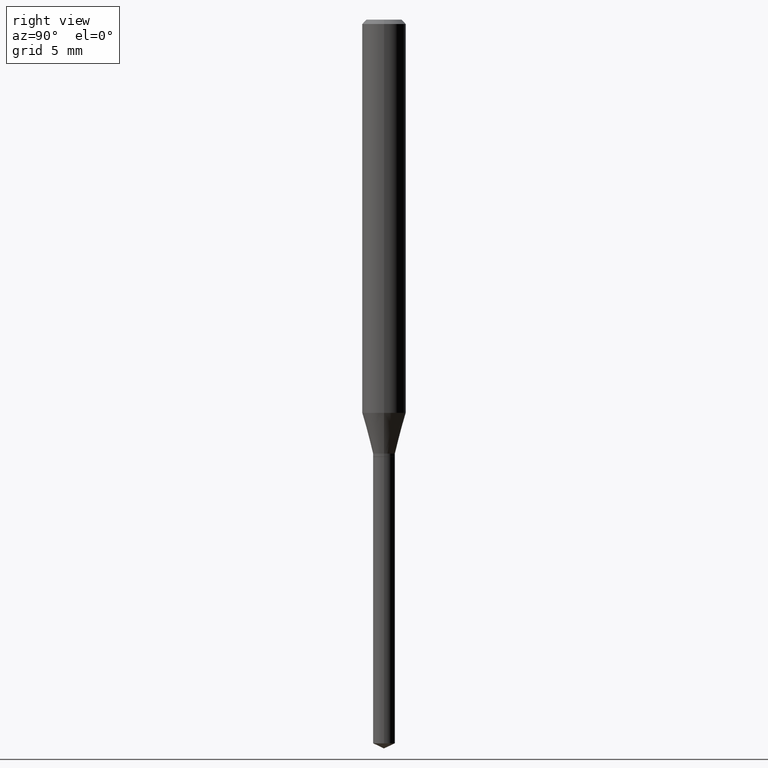
[diagram: clean part render]
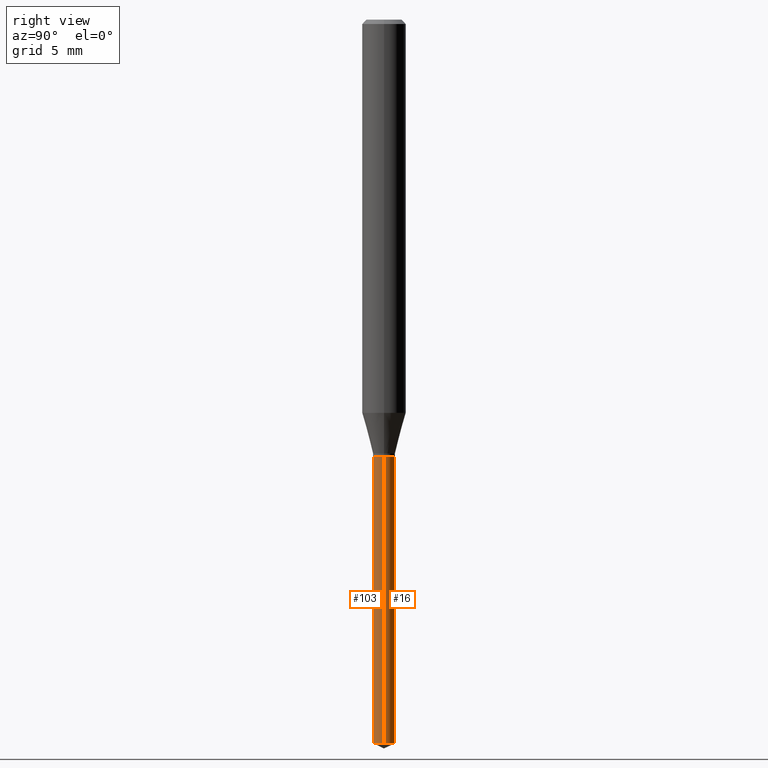
[diagram: same view with one multi-face feature highlighted, each face labeled with its STEP entity id]
A machine part, right view. The highlighted faces form ONE feature: a constant-radius fillet chain: 2 tangent blend faces with common blend radius 0.7506 mm. The faces share edges in the B-rep.
Their STEP definitions:
[1] entity #16 (Cylinder):
#5 = EDGE_CURVE ( 'NONE', #267, #316, #457, .T. ) ;
#10 = AXIS2_PLACEMENT_3D ( 'NONE', #373, #274, #487 ) ;
#16 = ADVANCED_FACE ( 'NONE', ( #430 ), #82, .T. ) ;
#18 = DIRECTION ( 'NONE',  ( -2.445468806185136597E-29, 3.491481338843145583E-15, 1.000000000000000000 ) ) ;
#40 = CARTESIAN_POINT ( 'NONE',  ( 0.02954999999999999294, -7.031217075059099515E-15, -1.954720608701519868 ) ) ;
#46 = DIRECTION ( 'NONE',  ( -2.445468806185136597E-29, 3.491481338843145583E-15, 1.000000000000000000 ) ) ;
#54 = ORIENTED_EDGE ( 'NONE', *, *, #445, .T. ) ;
#67 = DIRECTION ( 'NONE',  ( -2.445468806185136877E-29, 3.491481338843145188E-15, 1.000000000000000000 ) ) ;
#82 = CYLINDRICAL_SURFACE ( 'NONE', #417, 0.02954999999999999988 ) ;
#85 = CARTESIAN_POINT ( 'NONE',  ( -0.02954999999999999294, -6.614905149516361336E-15, -1.954720608701519868 ) ) ;
#97 = EDGE_LOOP ( 'NONE', ( #54, #100, #474, #293 ) ) ;
#100 = ORIENTED_EDGE ( 'NONE', *, *, #182, .T. ) ;
#106 = CARTESIAN_POINT ( 'NONE',  ( -0.02954999999999999988, -3.913823230890528878E-15, -1.181099999999999817 ) ) ;
#153 = AXIS2_PLACEMENT_3D ( 'NONE', #369, #18, #175 ) ;
#157 = CARTESIAN_POINT ( 'NONE',  ( 0.02954999999999999988, -4.330135156433267846E-15, -1.181099999999999817 ) ) ;
#175 = DIRECTION ( 'NONE',  ( 1.000000000000000000, -6.982962677686261977E-15, 0.000000000000000000 ) ) ;
#182 = EDGE_CURVE ( 'NONE', #335, #479, #224, .T. ) ;
#183 = VECTOR ( 'NONE', #67, 39.37007874015748143 ) ;
#198 = DIRECTION ( 'NONE',  ( 1.000000000000000000, -6.982962677686261977E-15, 0.000000000000000000 ) ) ;
#224 = LINE ( 'NONE', #106, #183 ) ;
#267 = VERTEX_POINT ( 'NONE', #40 ) ;
#274 = DIRECTION ( 'NONE',  ( -2.445468806185136597E-29, 3.491481338843145583E-15, 1.000000000000000000 ) ) ;
#281 = DIRECTION ( 'NONE',  ( -2.445468806185136877E-29, 3.491481338843145188E-15, 1.000000000000000000 ) ) ;
#293 = ORIENTED_EDGE ( 'NONE', *, *, #5, .F. ) ;
#316 = VERTEX_POINT ( 'NONE', #157 ) ;
#335 = VERTEX_POINT ( 'NONE', #85 ) ;
#369 = CARTESIAN_POINT ( 'NONE',  ( 2.888343206985264316E-29, -4.123788609307638235E-15, -1.181099999999999817 ) ) ;
#373 = CARTESIAN_POINT ( 'NONE',  ( 4.780208273386789219E-29, -6.824870527933470693E-15, -1.954720608701519868 ) ) ;
#389 = CIRCLE ( 'NONE', #153, 0.02954999999999999988 ) ;
#398 = CARTESIAN_POINT ( 'NONE',  ( 2.888343206985264877E-29, -4.123788609307639024E-15, -1.181099999999999817 ) ) ;
#417 = AXIS2_PLACEMENT_3D ( 'NONE', #398, #46, #198 ) ;
#418 = CIRCLE ( 'NONE', #10, 0.02954999999999999988 ) ;
#425 = EDGE_CURVE ( 'NONE', #316, #479, #389, .T. ) ;
#430 = FACE_OUTER_BOUND ( 'NONE', #97, .T. ) ;
#445 = EDGE_CURVE ( 'NONE', #267, #335, #418, .T. ) ;
#457 = LINE ( 'NONE', #464, #484 ) ;
#459 = CARTESIAN_POINT ( 'NONE',  ( -0.02954999999999999988, -5.264364190203445107E-15, -1.181099999999999817 ) ) ;
#464 = CARTESIAN_POINT ( 'NONE',  ( 0.02954999999999999988, -4.330135156433267846E-15, -1.181099999999999817 ) ) ;
#474 = ORIENTED_EDGE ( 'NONE', *, *, #425, .F. ) ;
#479 = VERTEX_POINT ( 'NONE', #459 ) ;
#484 = VECTOR ( 'NONE', #281, 39.37007874015748143 ) ;
#487 = DIRECTION ( 'NONE',  ( 1.000000000000000000, -6.982962677686261977E-15, 0.000000000000000000 ) ) ;
[2] entity #103 (Cylinder):
#5 = EDGE_CURVE ( 'NONE', #267, #316, #457, .T. ) ;
#17 = EDGE_LOOP ( 'NONE', ( #215, #331, #441, #47 ) ) ;
#40 = CARTESIAN_POINT ( 'NONE',  ( 0.02954999999999999294, -7.031217075059099515E-15, -1.954720608701519868 ) ) ;
#47 = ORIENTED_EDGE ( 'NONE', *, *, #77, .F. ) ;
#51 = EDGE_CURVE ( 'NONE', #335, #267, #109, .T. ) ;
#55 = CIRCLE ( 'NONE', #233, 0.02954999999999999988 ) ;
#67 = DIRECTION ( 'NONE',  ( -2.445468806185136877E-29, 3.491481338843145188E-15, 1.000000000000000000 ) ) ;
#77 = EDGE_CURVE ( 'NONE', #479, #316, #55, .T. ) ;
#85 = CARTESIAN_POINT ( 'NONE',  ( -0.02954999999999999294, -6.614905149516361336E-15, -1.954720608701519868 ) ) ;
#101 = AXIS2_PLACEMENT_3D ( 'NONE', #155, #461, #240 ) ;
#103 = ADVANCED_FACE ( 'NONE', ( #201 ), #460, .T. ) ;
#106 = CARTESIAN_POINT ( 'NONE',  ( -0.02954999999999999988, -3.913823230890528878E-15, -1.181099999999999817 ) ) ;
#109 = CIRCLE ( 'NONE', #101, 0.02954999999999999988 ) ;
#117 = DIRECTION ( 'NONE',  ( -2.445468806185136597E-29, 3.491481338843145583E-15, 1.000000000000000000 ) ) ;
#155 = CARTESIAN_POINT ( 'NONE',  ( 4.780208273386789219E-29, -6.824870527933470693E-15, -1.954720608701519868 ) ) ;
#156 = CARTESIAN_POINT ( 'NONE',  ( 2.888343206985264316E-29, -4.123788609307638235E-15, -1.181099999999999817 ) ) ;
#157 = CARTESIAN_POINT ( 'NONE',  ( 0.02954999999999999988, -4.330135156433267846E-15, -1.181099999999999817 ) ) ;
#163 = DIRECTION ( 'NONE',  ( 1.000000000000000000, -6.982962677686261977E-15, 0.000000000000000000 ) ) ;
#166 = AXIS2_PLACEMENT_3D ( 'NONE', #357, #117, #163 ) ;
#182 = EDGE_CURVE ( 'NONE', #335, #479, #224, .T. ) ;
#183 = VECTOR ( 'NONE', #67, 39.37007874015748143 ) ;
#201 = FACE_OUTER_BOUND ( 'NONE', #17, .T. ) ;
#215 = ORIENTED_EDGE ( 'NONE', *, *, #182, .F. ) ;
#224 = LINE ( 'NONE', #106, #183 ) ;
#233 = AXIS2_PLACEMENT_3D ( 'NONE', #156, #395, #387 ) ;
#240 = DIRECTION ( 'NONE',  ( 1.000000000000000000, -6.982962677686261977E-15, 0.000000000000000000 ) ) ;
#267 = VERTEX_POINT ( 'NONE', #40 ) ;
#281 = DIRECTION ( 'NONE',  ( -2.445468806185136877E-29, 3.491481338843145188E-15, 1.000000000000000000 ) ) ;
#316 = VERTEX_POINT ( 'NONE', #157 ) ;
#331 = ORIENTED_EDGE ( 'NONE', *, *, #51, .T. ) ;
#335 = VERTEX_POINT ( 'NONE', #85 ) ;
#357 = CARTESIAN_POINT ( 'NONE',  ( 2.888343206985264877E-29, -4.123788609307639024E-15, -1.181099999999999817 ) ) ;
#387 = DIRECTION ( 'NONE',  ( 1.000000000000000000, -6.982962677686261977E-15, 0.000000000000000000 ) ) ;
#395 = DIRECTION ( 'NONE',  ( -2.445468806185136597E-29, 3.491481338843145583E-15, 1.000000000000000000 ) ) ;
#441 = ORIENTED_EDGE ( 'NONE', *, *, #5, .T. ) ;
#457 = LINE ( 'NONE', #464, #484 ) ;
#459 = CARTESIAN_POINT ( 'NONE',  ( -0.02954999999999999988, -5.264364190203445107E-15, -1.181099999999999817 ) ) ;
#460 = CYLINDRICAL_SURFACE ( 'NONE', #166, 0.02954999999999999988 ) ;
#461 = DIRECTION ( 'NONE',  ( -2.445468806185136597E-29, 3.491481338843145583E-15, 1.000000000000000000 ) ) ;
#464 = CARTESIAN_POINT ( 'NONE',  ( 0.02954999999999999988, -4.330135156433267846E-15, -1.181099999999999817 ) ) ;
#479 = VERTEX_POINT ( 'NONE', #459 ) ;
#484 = VECTOR ( 'NONE', #281, 39.37007874015748143 ) ;